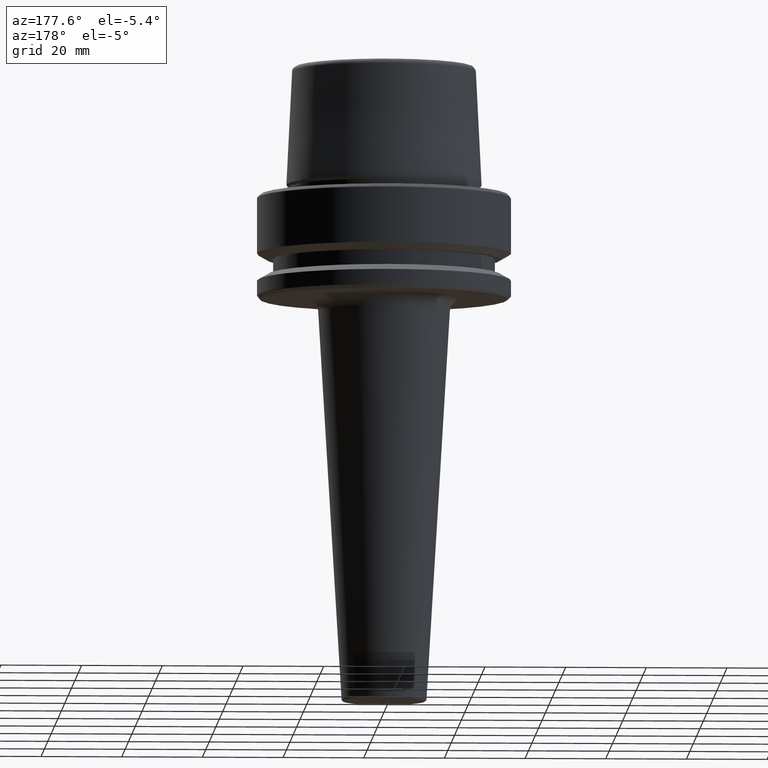
[diagram: clean part render]
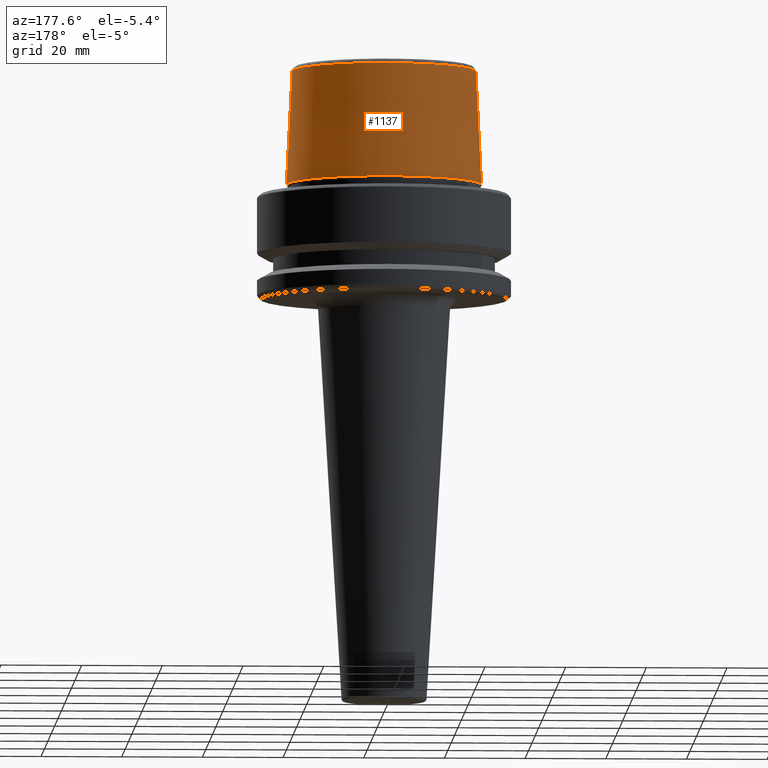
[diagram: same view with one face highlighted and labeled with its STEP entity id]
A machine part, auxiliary view. The second image highlights one B-rep face of the part: STEP entity #1137.
In plain terms, the highlighted conical surface has half-angle 2.868 deg.
Its self-contained STEP definition (entity closure, byte-faithful):
#2 = LINE ( 'NONE', #1092, #1006 ) ;
#49 = CARTESIAN_POINT ( 'NONE',  ( 0.0000000000000000000, 0.0000000000000000000, 2.500000000000002200 ) ) ;
#126 = CARTESIAN_POINT ( 'NONE',  ( 22.77957961851797100, 2.876386432489616700E-015, 30.76004333261571900 ) ) ;
#144 = DIRECTION ( 'NONE',  ( 0.0000000000000000000, 0.0000000000000000000, -1.000000000000000000 ) ) ;
#230 = CIRCLE ( 'NONE', #662, 22.77957961851797100 ) ;
#322 = CARTESIAN_POINT ( 'NONE',  ( 0.0000000000000000000, 0.0000000000000000000, 30.76004333261571900 ) ) ;
#351 = EDGE_CURVE ( 'NONE', #1196, #410, #1260, .T. ) ;
#406 = ORIENTED_EDGE ( 'NONE', *, *, #827, .T. ) ;
#409 = DIRECTION ( 'NONE',  ( -0.05003611051310804400, 0.0000000000000000000, -0.9987474093306675200 ) ) ;
#410 = VERTEX_POINT ( 'NONE', #843 ) ;
#419 = EDGE_LOOP ( 'NONE', ( #609, #406, #454, #867 ) ) ;
#423 = DIRECTION ( 'NONE',  ( 1.000000000000000000, 0.0000000000000000000, 0.0000000000000000000 ) ) ;
#433 = DIRECTION ( 'NONE',  ( -1.000000000000000000, 0.0000000000000000000, 0.0000000000000000000 ) ) ;
#454 = ORIENTED_EDGE ( 'NONE', *, *, #351, .T. ) ;
#489 = DIRECTION ( 'NONE',  ( 0.05003611051310804400, 6.127656258166099700E-018, -0.9987474093306675200 ) ) ;
#596 = AXIS2_PLACEMENT_3D ( 'NONE', #898, #1219, #624 ) ;
#609 = ORIENTED_EDGE ( 'NONE', *, *, #1211, .F. ) ;
#624 = DIRECTION ( 'NONE',  ( 1.000000000000000000, 0.0000000000000000000, 0.0000000000000000000 ) ) ;
#662 = AXIS2_PLACEMENT_3D ( 'NONE', #322, #1009, #423 ) ;
#720 = VERTEX_POINT ( 'NONE', #904 ) ;
#776 = CONICAL_SURFACE ( 'NONE', #918, 24.19537568275369200, 0.05005701257455997400 ) ;
#827 = EDGE_CURVE ( 'NONE', #1157, #1196, #1236, .T. ) ;
#843 = CARTESIAN_POINT ( 'NONE',  ( -24.19537568275369200, 2.963078938405201500E-015, 2.500000000000002200 ) ) ;
#867 = ORIENTED_EDGE ( 'NONE', *, *, #1155, .F. ) ;
#882 = CARTESIAN_POINT ( 'NONE',  ( 24.19537568275369200, 2.963078938405201500E-015, 2.500000000000002200 ) ) ;
#898 = CARTESIAN_POINT ( 'NONE',  ( 0.0000000000000000000, 0.0000000000000000000, 2.500000000000002200 ) ) ;
#904 = CARTESIAN_POINT ( 'NONE',  ( -22.77957961851797100, 0.0000000000000000000, 30.76004333261571900 ) ) ;
#913 = CARTESIAN_POINT ( 'NONE',  ( 24.19537568275369200, 0.0000000000000000000, 2.500000000000002200 ) ) ;
#918 = AXIS2_PLACEMENT_3D ( 'NONE', #49, #144, #433 ) ;
#948 = VECTOR ( 'NONE', #489, 1000.000000000000200 ) ;
#1006 = VECTOR ( 'NONE', #409, 1000.000000000000200 ) ;
#1009 = DIRECTION ( 'NONE',  ( -0.0000000000000000000, -0.0000000000000000000, 1.000000000000000000 ) ) ;
#1092 = CARTESIAN_POINT ( 'NONE',  ( -24.19537568275369200, 0.0000000000000000000, 2.500000000000002200 ) ) ;
#1137 = ADVANCED_FACE ( 'NONE', ( #1259 ), #776, .T. ) ;
#1155 = EDGE_CURVE ( 'NONE', #720, #410, #2, .T. ) ;
#1157 = VERTEX_POINT ( 'NONE', #126 ) ;
#1196 = VERTEX_POINT ( 'NONE', #913 ) ;
#1211 = EDGE_CURVE ( 'NONE', #1157, #720, #230, .T. ) ;
#1219 = DIRECTION ( 'NONE',  ( -0.0000000000000000000, -0.0000000000000000000, 1.000000000000000000 ) ) ;
#1236 = LINE ( 'NONE', #882, #948 ) ;
#1259 = FACE_OUTER_BOUND ( 'NONE', #419, .T. ) ;
#1260 = CIRCLE ( 'NONE', #596, 24.19537568275369200 ) ;